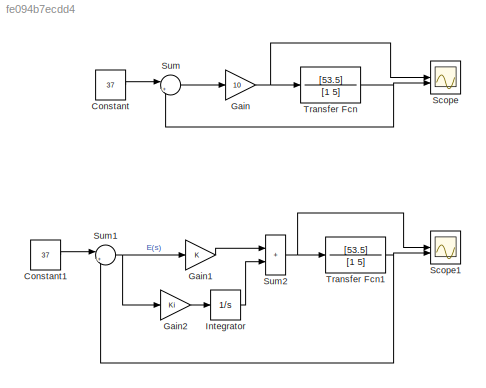
MODEL slx_fe094b7ecdd4
KIND model
CONFIG AbsTol = auto
CONFIG EnableMultiTasking = off
CONFIG FixedStep = 0.001
CONFIG MaxStep = auto
CONFIG MinStep = auto
CONFIG RelTol = 1e-3
CONFIG SampleTimeConstraint = Unconstrained
CONFIG SolverName = ode4
CONFIG StartTime = 0.0
CONFIG StopTime = 10.0
BLOCK [Constant] Constant
  Value = 37
BLOCK [Constant] Constant1
  Value = 37
BLOCK [Gain] Gain
  Gain = 10
BLOCK [Gain] Gain1
  Gain = K
BLOCK [Gain] Gain2
  Gain = Ki
BLOCK [Integrator] Integrator
BLOCK [Scope] Scope
  Floating = off
  NumInputPorts = 2
  ScopeSpecificationString = Simulink.scopes.TimeScopeBlockCfg('CurrentConfiguration', extmgr.ConfigurationSet(extmgr.Configuration('Core','General UI',true,'FigureColor',[1 1 1]),extmgr.Configuration('Core','Source UI',true),extmgr.Configuration('Sources','WiredSimulink',true),extmgr.Configuration('Visuals','Time Domain',true,'SerializedDisplays',{struct('MinYLimReal','-42.39583','MaxYLimReal','415.82176','YLabelReal','','Mi...<+2252ch>
BLOCK [Scope] Scope1
  Floating = off
  NumInputPorts = 2
  ScopeSpecificationString = Simulink.scopes.TimeScopeBlockCfg('CurrentConfiguration', extmgr.ConfigurationSet(extmgr.Configuration('Core','General UI',true,'FigureColor',[1 1 1]),extmgr.Configuration('Core','Source UI',true),extmgr.Configuration('Sources','WiredSimulink',true,'DataLoggingVariableName','ScopeData1'),extmgr.Configuration('Visuals','Time Domain',true,'SerializedDisplays',{struct('MinYLimReal','-0.83216','MaxYLi...<+2285ch>
BLOCK [Sum] Sum
  Inputs = |+-
BLOCK [Sum] Sum1
  Inputs = |+-
BLOCK [Sum] Sum2
  IconShape = rectangular
  Inputs = |++
BLOCK [TransferFcn] Transfer Fcn
  Denominator = [1 5]
  Numerator = [53.5]
BLOCK [TransferFcn] Transfer Fcn1
  Denominator = [1 5]
  Numerator = [53.5]
LINE Constant1:1 -> Sum1:1
LINE Constant:1 -> Sum:1
LINE Gain1:1 -> Sum2:1
LINE Gain2:1 -> Integrator:1
NET Gain:1 -> Scope:1, Transfer Fcn:1
LINE Integrator:1 -> Sum2:2
NET Sum1:1 -> Gain1:1, Gain2:1
NET Sum2:1 -> Scope1:1, Transfer Fcn1:1
LINE Sum:1 -> Gain:1
NET Transfer Fcn1:1 -> Scope1:2, Sum1:2
NET Transfer Fcn:1 -> Scope:2, Sum:2
note: NET lines group one-source signal fan-out (src -> all destinations, sorted); 1:1 wires keep LINE
